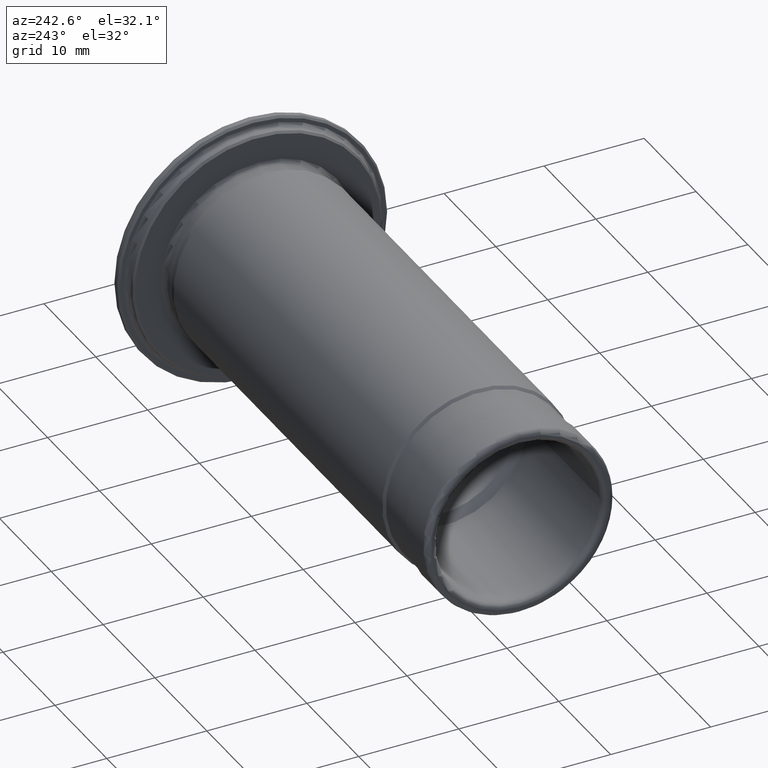
[diagram: clean part render]
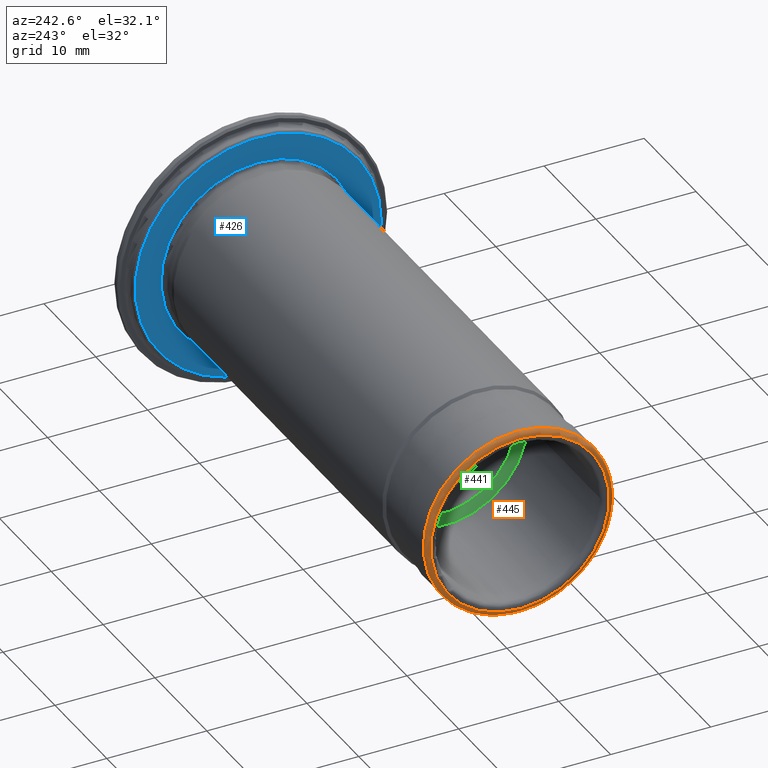
[diagram: same view with three faces highlighted in distinct colors, each labeled with its STEP entity id]
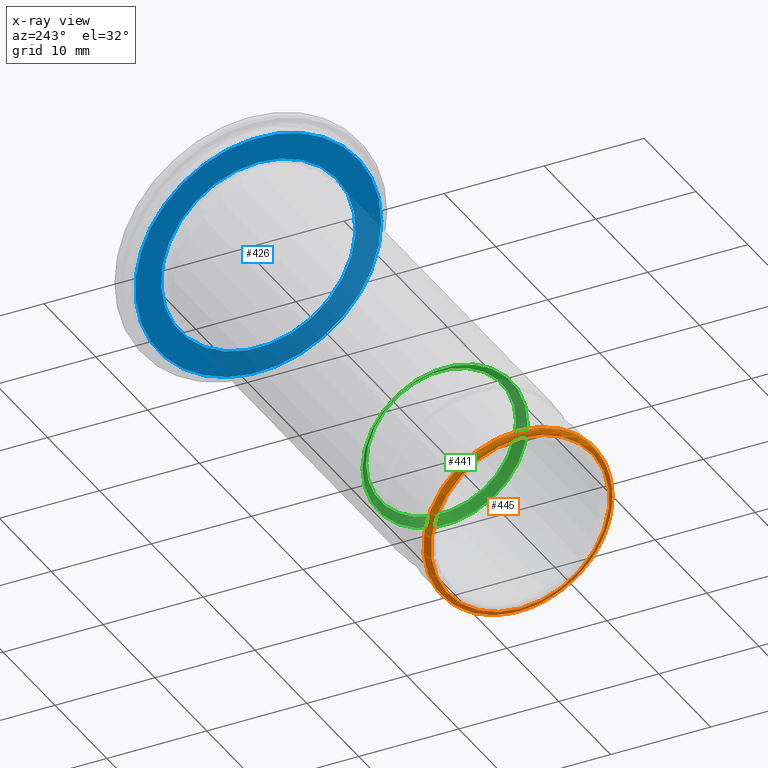
[diagram: x-ray of the same camera — body ghosted, the three highlighted faces saturated]
A machine part, auxiliary view with three faces highlighted in distinct colors.
The next image is the same camera in x-ray (body ghosted, the three faces saturated) — at least one of them is partly hidden behind the body in this view.
Their STEP definitions:

[orange] entity #445 — the highlighted toroidal blend (fillet) surface has major radius 8.925 mm and minor (blend) radius 0.5 mm.
#39=TOROIDAL_SURFACE('',#537,8.92500000000015,0.5);
#63=FACE_OUTER_BOUND('',#96,.T.);
#96=EDGE_LOOP('',(#388,#389,#390,#391,#392));
#175=CIRCLE('',#536,8.92500000000015);
#176=CIRCLE('',#538,9.42500000000015);
#177=CIRCLE('',#539,9.42500000000015);
#178=CIRCLE('',#540,0.5);
#215=VERTEX_POINT('',#828);
#216=VERTEX_POINT('',#831);
#217=VERTEX_POINT('',#832);
#273=EDGE_CURVE('',#215,#215,#175,.T.);
#274=EDGE_CURVE('',#216,#217,#176,.T.);
#275=EDGE_CURVE('',#217,#216,#177,.T.);
#276=EDGE_CURVE('',#217,#215,#178,.T.);
#388=ORIENTED_EDGE('',*,*,#274,.F.);
#389=ORIENTED_EDGE('',*,*,#275,.F.);
#390=ORIENTED_EDGE('',*,*,#276,.T.);
#391=ORIENTED_EDGE('',*,*,#273,.T.);
#392=ORIENTED_EDGE('',*,*,#276,.F.);
#445=ADVANCED_FACE('',(#63),#39,.T.);
#536=AXIS2_PLACEMENT_3D('',#829,#688,#689);
#537=AXIS2_PLACEMENT_3D('',#830,#690,#691);
#538=AXIS2_PLACEMENT_3D('',#833,#692,#693);
#539=AXIS2_PLACEMENT_3D('',#834,#694,#695);
#540=AXIS2_PLACEMENT_3D('',#835,#696,#697);
#688=DIRECTION('center_axis',(1.,0.,0.));
#689=DIRECTION('ref_axis',(0.,0.,-1.));
#690=DIRECTION('center_axis',(1.,0.,0.));
#691=DIRECTION('ref_axis',(0.,0.,-1.));
#692=DIRECTION('center_axis',(1.,0.,0.));
#693=DIRECTION('ref_axis',(0.,0.,-1.));
#694=DIRECTION('center_axis',(1.,0.,0.));
#695=DIRECTION('ref_axis',(0.,0.,-1.));
#696=DIRECTION('center_axis',(0.,-1.,-1.22464679914735E-16));
#697=DIRECTION('ref_axis',(0.,-1.22464679914735E-16,1.));
#828=CARTESIAN_POINT('',(-52.5373444376472,-1.09299726823903E-15,8.92500000000015));
#829=CARTESIAN_POINT('Origin',(-52.5373444376472,0.,0.));
#830=CARTESIAN_POINT('Origin',(-52.0373444376472,0.,0.));
#831=CARTESIAN_POINT('',(-52.0373444376472,-9.42500000000011,-1.15422960819639E-15));
#832=CARTESIAN_POINT('',(-52.0373444376472,-1.1542296081964E-15,9.42500000000015));
#833=CARTESIAN_POINT('Origin',(-52.0373444376472,0.,0.));
#834=CARTESIAN_POINT('Origin',(-52.0373444376472,0.,0.));
#835=CARTESIAN_POINT('Origin',(-52.0373444376472,-1.09299726823903E-15,
8.92500000000015));

[blue] entity #426 — the highlighted planar face has unit normal (-1, 0, 0).
#15=FACE_BOUND('',#74,.T.);
#19=PLANE('',#488);
#44=FACE_OUTER_BOUND('',#73,.T.);
#73=EDGE_LOOP('',(#308));
#74=EDGE_LOOP('',(#309));
#145=CIRCLE('',#487,9.72499999999901);
#146=CIRCLE('',#489,12.3000000000003);
#190=VERTEX_POINT('',#743);
#191=VERTEX_POINT('',#747);
#233=EDGE_CURVE('',#190,#190,#145,.T.);
#234=EDGE_CURVE('',#191,#191,#146,.T.);
#308=ORIENTED_EDGE('',*,*,#234,.F.);
#309=ORIENTED_EDGE('',*,*,#233,.T.);
#426=ADVANCED_FACE('',(#44,#15),#19,.T.);
#487=AXIS2_PLACEMENT_3D('',#745,#580,#581);
#488=AXIS2_PLACEMENT_3D('',#746,#582,#583);
#489=AXIS2_PLACEMENT_3D('',#748,#584,#585);
#580=DIRECTION('center_axis',(1.,0.,0.));
#581=DIRECTION('ref_axis',(0.,0.,-1.));
#582=DIRECTION('center_axis',(-1.,0.,0.));
#583=DIRECTION('ref_axis',(0.,0.,1.));
#584=DIRECTION('center_axis',(1.,0.,0.));
#585=DIRECTION('ref_axis',(0.,0.,-1.));
#743=CARTESIAN_POINT('',(-2.03734443764722,-1.19096901217068E-15,9.72499999999901));
#745=CARTESIAN_POINT('Origin',(-2.03734443764722,0.,0.));
#746=CARTESIAN_POINT('Origin',(-2.03734443764731,12.3000000000003,0.));
#747=CARTESIAN_POINT('',(-2.03734443764709,-12.3000000000003,-1.50631556295128E-15));
#748=CARTESIAN_POINT('Origin',(-2.03734443764709,0.,0.));

[green] entity #441 — the highlighted conical surface has half-angle 45 deg.
#59=FACE_OUTER_BOUND('',#91,.T.);
#91=EDGE_LOOP('',(#372,#373,#374,#375));
#112=LINE('',#815,#129);
#129=VECTOR('',#670,7.8750000000001);
#169=CIRCLE('',#526,7.50000000000009);
#170=CIRCLE('',#528,8.2500000000001);
#210=VERTEX_POINT('',#810);
#211=VERTEX_POINT('',#814);
#265=EDGE_CURVE('',#210,#210,#169,.T.);
#266=EDGE_CURVE('',#210,#211,#112,.T.);
#267=EDGE_CURVE('',#211,#211,#170,.T.);
#372=ORIENTED_EDGE('',*,*,#265,.T.);
#373=ORIENTED_EDGE('',*,*,#266,.T.);
#374=ORIENTED_EDGE('',*,*,#267,.F.);
#375=ORIENTED_EDGE('',*,*,#266,.F.);
#419=CONICAL_SURFACE('',#527,7.8750000000001,0.785398163397626);
#441=ADVANCED_FACE('',(#59),#419,.F.);
#526=AXIS2_PLACEMENT_3D('',#812,#666,#667);
#527=AXIS2_PLACEMENT_3D('',#813,#668,#669);
#528=AXIS2_PLACEMENT_3D('',#816,#671,#672);
#666=DIRECTION('center_axis',(1.,0.,0.));
#667=DIRECTION('ref_axis',(0.,0.,-1.));
#668=DIRECTION('center_axis',(-1.,0.,0.));
#669=DIRECTION('ref_axis',(0.,1.,0.));
#670=DIRECTION('',(-0.707106781186422,-0.707106781186673,-8.65956056235647E-17));
#671=DIRECTION('center_axis',(1.,0.,0.));
#672=DIRECTION('ref_axis',(0.,0.,-1.));
#810=CARTESIAN_POINT('',(-37.2873444376473,-7.50000000000011,-9.18485099360529E-16));
#812=CARTESIAN_POINT('Origin',(-37.2873444376473,0.,0.));
#813=CARTESIAN_POINT('Origin',(-37.6623444376472,0.,0.));
#814=CARTESIAN_POINT('',(-38.0373444376471,-8.2500000000001,-1.01033360929658E-15));
#815=CARTESIAN_POINT('',(-37.6623444376472,-7.8750000000001,-9.64409354328553E-16));
#816=CARTESIAN_POINT('Origin',(-38.0373444376471,0.,0.));